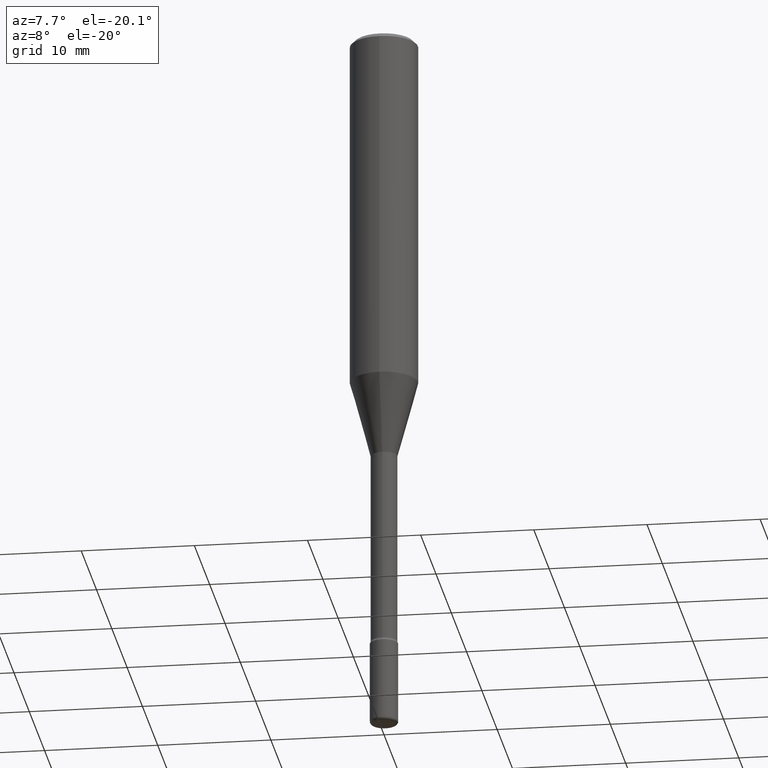
[diagram: clean part render]
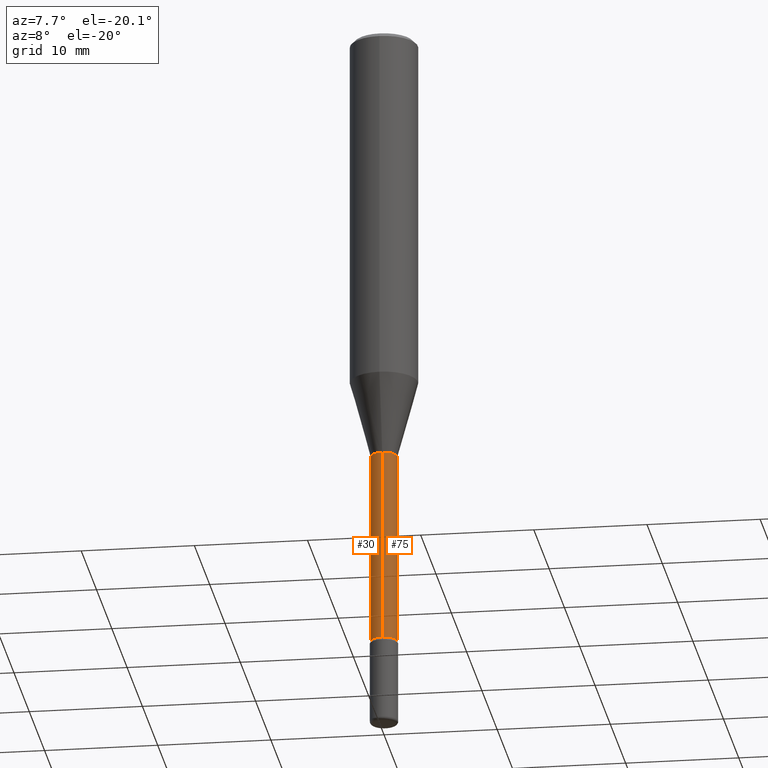
[diagram: same view with one multi-face feature highlighted, each face labeled with its STEP entity id]
A machine part, auxiliary view. The highlighted faces form ONE feature: a constant-radius fillet chain: 2 tangent blend faces with common blend radius 1.1748 mm. The faces share edges in the B-rep.
Their STEP definitions:
[1] entity #75 (Cylinder):
#37 = AXIS2_PLACEMENT_3D ( 'NONE', #484, #482, #122 ) ;
#75 = ADVANCED_FACE ( 'NONE', ( #85 ), #219, .T. ) ;
#76 = DIRECTION ( 'NONE',  ( -6.982962677686265922E-15, -1.000000000000000000, 3.491120058031800528E-15 ) ) ;
#85 = FACE_OUTER_BOUND ( 'NONE', #461, .T. ) ;
#99 = DIRECTION ( 'NONE',  ( -2.445721087227316555E-29, 3.491120058031798950E-15, 1.000000000000000000 ) ) ;
#117 = ORIENTED_EDGE ( 'NONE', *, *, #332, .T. ) ;
#122 = DIRECTION ( 'NONE',  ( -6.982962677686265922E-15, -1.000000000000000000, 5.906698364679479320E-15 ) ) ;
#139 = CIRCLE ( 'NONE', #217, 0.04624999999999999944 ) ;
#142 = VECTOR ( 'NONE', #331, 39.37007874015748143 ) ;
#148 = EDGE_CURVE ( 'NONE', #181, #413, #431, .T. ) ;
#149 = AXIS2_PLACEMENT_3D ( 'NONE', #446, #562, #76 ) ;
#172 = CARTESIAN_POINT ( 'NONE',  ( -3.229620238429526702E-16, -0.04625000000000530076, -1.517674787463811015 ) ) ;
#178 = CARTESIAN_POINT ( 'NONE',  ( 3.711809231253478318E-29, -5.298384892084059115E-15, -1.517674787463811237 ) ) ;
#181 = VERTEX_POINT ( 'NONE', #417 ) ;
#216 = CIRCLE ( 'NONE', #37, 0.04625000000000006883 ) ;
#217 = AXIS2_PLACEMENT_3D ( 'NONE', #178, #99, #399 ) ;
#219 = CYLINDRICAL_SURFACE ( 'NONE', #149, 0.04625000000000003414 ) ;
#237 = EDGE_CURVE ( 'NONE', #545, #433, #253, .T. ) ;
#253 = LINE ( 'NONE', #560, #142 ) ;
#273 = ORIENTED_EDGE ( 'NONE', *, *, #520, .F. ) ;
#281 = CARTESIAN_POINT ( 'NONE',  ( -3.229620238429900424E-16, -0.04625000000000003414, 6.395377015752169353E-16 ) ) ;
#326 = ORIENTED_EDGE ( 'NONE', *, *, #148, .F. ) ;
#331 = DIRECTION ( 'NONE',  ( -2.445721087227316555E-29, 3.491120058031798950E-15, 1.000000000000000000 ) ) ;
#332 = EDGE_CURVE ( 'NONE', #181, #545, #216, .T. ) ;
#338 = DIRECTION ( 'NONE',  ( -2.445721087227316555E-29, 3.491120058031798950E-15, 1.000000000000000000 ) ) ;
#344 = CARTESIAN_POINT ( 'NONE',  ( 3.286260152891002704E-16, 0.04624999999999469813, -1.517674787463811459 ) ) ;
#399 = DIRECTION ( 'NONE',  ( -6.982962677686265922E-15, -1.000000000000000000, 5.906698364679487997E-15 ) ) ;
#413 = VERTEX_POINT ( 'NONE', #172 ) ;
#417 = CARTESIAN_POINT ( 'NONE',  ( -3.229620238429365971E-16, -0.04625000000000773631, -2.195767055356714348 ) ) ;
#431 = LINE ( 'NONE', #281, #534 ) ;
#433 = VERTEX_POINT ( 'NONE', #344 ) ;
#446 = CARTESIAN_POINT ( 'NONE',  ( -1.169113584055446105E-44, 1.669184350826100908E-30, 4.780733988912460139E-16 ) ) ;
#455 = ORIENTED_EDGE ( 'NONE', *, *, #237, .T. ) ;
#461 = EDGE_LOOP ( 'NONE', ( #117, #455, #273, #326 ) ) ;
#482 = DIRECTION ( 'NONE',  ( -2.445721087227316555E-29, 3.491120058031798950E-15, 1.000000000000000000 ) ) ;
#484 = CARTESIAN_POINT ( 'NONE',  ( 5.370233789924947093E-29, -7.665686409721247305E-15, -2.195767055356714792 ) ) ;
#520 = EDGE_CURVE ( 'NONE', #413, #433, #139, .T. ) ;
#534 = VECTOR ( 'NONE', #338, 39.37007874015748143 ) ;
#539 = CARTESIAN_POINT ( 'NONE',  ( 3.391065206415618758E-16, 0.04624999999999240136, -2.195767055356715236 ) ) ;
#545 = VERTEX_POINT ( 'NONE', #539 ) ;
#560 = CARTESIAN_POINT ( 'NONE',  ( 3.286260152890465292E-16, 0.04625000000000003414, 3.166090962072752405E-16 ) ) ;
#562 = DIRECTION ( 'NONE',  ( -2.445721087227316555E-29, 3.491120058031798950E-15, 1.000000000000000000 ) ) ;
[2] entity #30 (Cylinder):
#5 = DIRECTION ( 'NONE',  ( -6.982962677686265922E-15, -1.000000000000000000, 5.906698364679479320E-15 ) ) ;
#7 = DIRECTION ( 'NONE',  ( -2.445721087227316555E-29, 3.491120058031798950E-15, 1.000000000000000000 ) ) ;
#30 = ADVANCED_FACE ( 'NONE', ( #258 ), #249, .T. ) ;
#35 = CARTESIAN_POINT ( 'NONE',  ( -1.169113584055446105E-44, 1.669184350826100908E-30, 4.780733988912460139E-16 ) ) ;
#43 = CARTESIAN_POINT ( 'NONE',  ( 5.370233789924947093E-29, -7.665686409721247305E-15, -2.195767055356714792 ) ) ;
#59 = ORIENTED_EDGE ( 'NONE', *, *, #148, .T. ) ;
#102 = AXIS2_PLACEMENT_3D ( 'NONE', #43, #7, #5 ) ;
#142 = VECTOR ( 'NONE', #331, 39.37007874015748143 ) ;
#148 = EDGE_CURVE ( 'NONE', #181, #413, #431, .T. ) ;
#150 = CARTESIAN_POINT ( 'NONE',  ( 3.711809231253478318E-29, -5.298384892084059115E-15, -1.517674787463811237 ) ) ;
#172 = CARTESIAN_POINT ( 'NONE',  ( -3.229620238429526702E-16, -0.04625000000000530076, -1.517674787463811015 ) ) ;
#181 = VERTEX_POINT ( 'NONE', #417 ) ;
#204 = EDGE_CURVE ( 'NONE', #433, #413, #347, .T. ) ;
#214 = DIRECTION ( 'NONE',  ( -6.982962677686265922E-15, -1.000000000000000000, 3.491120058031800528E-15 ) ) ;
#226 = AXIS2_PLACEMENT_3D ( 'NONE', #35, #430, #214 ) ;
#237 = EDGE_CURVE ( 'NONE', #545, #433, #253, .T. ) ;
#249 = CYLINDRICAL_SURFACE ( 'NONE', #226, 0.04625000000000003414 ) ;
#253 = LINE ( 'NONE', #560, #142 ) ;
#258 = FACE_OUTER_BOUND ( 'NONE', #499, .T. ) ;
#281 = CARTESIAN_POINT ( 'NONE',  ( -3.229620238429900424E-16, -0.04625000000000003414, 6.395377015752169353E-16 ) ) ;
#294 = DIRECTION ( 'NONE',  ( -2.445721087227316555E-29, 3.491120058031798950E-15, 1.000000000000000000 ) ) ;
#324 = ORIENTED_EDGE ( 'NONE', *, *, #533, .T. ) ;
#331 = DIRECTION ( 'NONE',  ( -2.445721087227316555E-29, 3.491120058031798950E-15, 1.000000000000000000 ) ) ;
#338 = DIRECTION ( 'NONE',  ( -2.445721087227316555E-29, 3.491120058031798950E-15, 1.000000000000000000 ) ) ;
#344 = CARTESIAN_POINT ( 'NONE',  ( 3.286260152891002704E-16, 0.04624999999999469813, -1.517674787463811459 ) ) ;
#347 = CIRCLE ( 'NONE', #463, 0.04624999999999999944 ) ;
#378 = DIRECTION ( 'NONE',  ( -6.982962677686265922E-15, -1.000000000000000000, 5.906698364679487997E-15 ) ) ;
#413 = VERTEX_POINT ( 'NONE', #172 ) ;
#417 = CARTESIAN_POINT ( 'NONE',  ( -3.229620238429365971E-16, -0.04625000000000773631, -2.195767055356714348 ) ) ;
#430 = DIRECTION ( 'NONE',  ( -2.445721087227316555E-29, 3.491120058031798950E-15, 1.000000000000000000 ) ) ;
#431 = LINE ( 'NONE', #281, #534 ) ;
#433 = VERTEX_POINT ( 'NONE', #344 ) ;
#463 = AXIS2_PLACEMENT_3D ( 'NONE', #150, #294, #378 ) ;
#471 = ORIENTED_EDGE ( 'NONE', *, *, #204, .F. ) ;
#499 = EDGE_LOOP ( 'NONE', ( #552, #324, #59, #471 ) ) ;
#528 = CIRCLE ( 'NONE', #102, 0.04625000000000006883 ) ;
#533 = EDGE_CURVE ( 'NONE', #545, #181, #528, .T. ) ;
#534 = VECTOR ( 'NONE', #338, 39.37007874015748143 ) ;
#539 = CARTESIAN_POINT ( 'NONE',  ( 3.391065206415618758E-16, 0.04624999999999240136, -2.195767055356715236 ) ) ;
#545 = VERTEX_POINT ( 'NONE', #539 ) ;
#552 = ORIENTED_EDGE ( 'NONE', *, *, #237, .F. ) ;
#560 = CARTESIAN_POINT ( 'NONE',  ( 3.286260152890465292E-16, 0.04625000000000003414, 3.166090962072752405E-16 ) ) ;